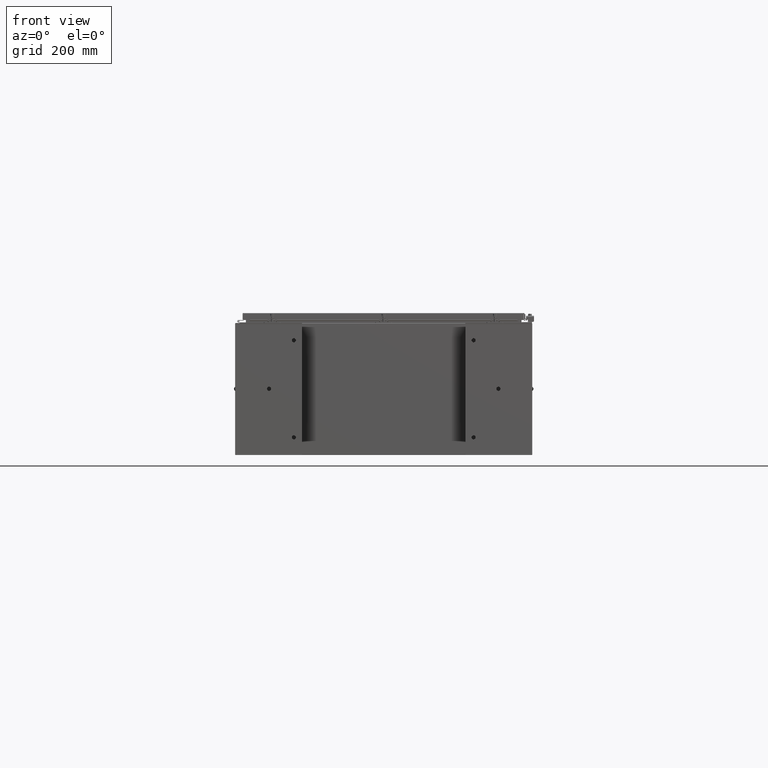
[diagram: clean part render]
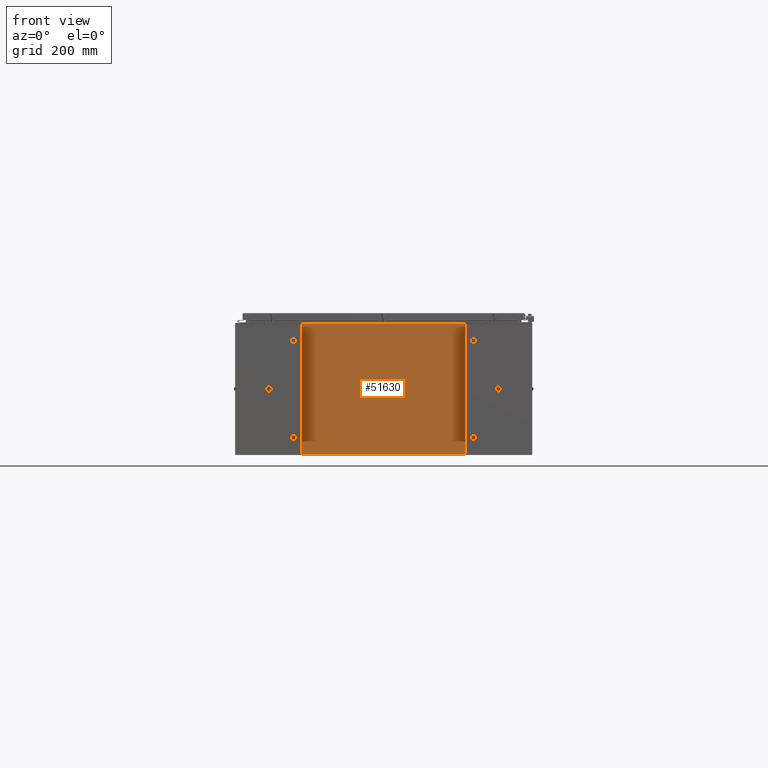
[diagram: same view with one face highlighted and labeled with its STEP entity id]
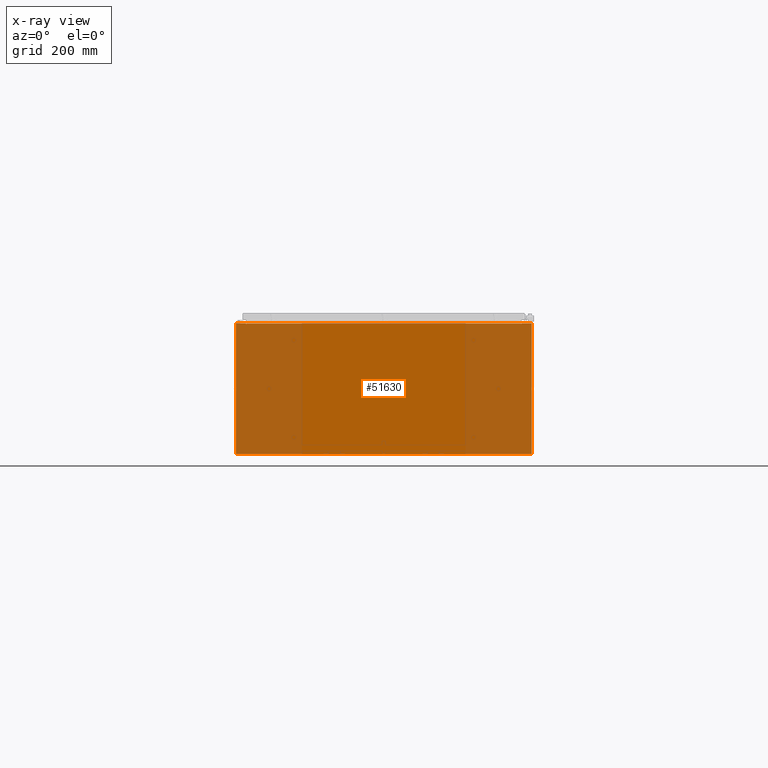
[diagram: x-ray of the same camera — body ghosted, the highlighted face saturated]
A machine part, front view. The second image highlights one B-rep face of the part: STEP entity #51630.
The next image is the same camera in x-ray: the body ghosted, the highlighted face saturated — about 44% of this face is hidden behind the body in this view.
In plain terms, the highlighted planar face has unit normal (-0, 1, -0).
Its self-contained STEP definition (entity closure, byte-faithful):
#490 = VECTOR ( 'NONE', #15220, 39.37007874015748100 ) ;
#648 = VECTOR ( 'NONE', #46348, 39.37007874015748100 ) ;
#884 = EDGE_CURVE ( 'NONE', #54843, #11940, #12975, .T. ) ;
#2053 = VERTEX_POINT ( 'NONE', #45691 ) ;
#2247 = DIRECTION ( 'NONE',  ( 0.0000000000000000000, 0.0000000000000000000, -1.000000000000000000 ) ) ;
#2486 = CARTESIAN_POINT ( 'NONE',  ( -17.92530000000000000, 0.0000000000000000000, -7.925299999999997300 ) ) ;
#2581 = ORIENTED_EDGE ( 'NONE', *, *, #22361, .F. ) ;
#5042 = DIRECTION ( 'NONE',  ( -1.000000000000000000, -0.0000000000000000000, -0.0000000000000000000 ) ) ;
#5369 = CARTESIAN_POINT ( 'NONE',  ( 17.92530000000000000, 0.0000000000000000000, 7.925300000000000000 ) ) ;
#5681 = VERTEX_POINT ( 'NONE', #5369 ) ;
#5749 = VERTEX_POINT ( 'NONE', #2486 ) ;
#6670 = CIRCLE ( 'NONE', #21813, 0.01867499999999949400 ) ;
#6705 = FACE_OUTER_BOUND ( 'NONE', #8356, .T. ) ;
#7460 = VERTEX_POINT ( 'NONE', #66155 ) ;
#7583 = DIRECTION ( 'NONE',  ( 1.000000000000000000, 0.0000000000000000000, -6.096072018129154100E-017 ) ) ;
#8314 = DIRECTION ( 'NONE',  ( 0.0000000000000000000, 0.0000000000000000000, 1.000000000000000000 ) ) ;
#8356 = EDGE_LOOP ( 'NONE', ( #12136, #45063, #59009, #34534, #2581, #60971, #21032, #44438, #13191, #35045, #33623, #66782 ) ) ;
#9908 = CARTESIAN_POINT ( 'NONE',  ( -17.92530000000000000, 0.0000000000000000000, 7.925300000000001800 ) ) ;
#10824 = VERTEX_POINT ( 'NONE', #18031 ) ;
#11940 = VERTEX_POINT ( 'NONE', #31055 ) ;
#12136 = ORIENTED_EDGE ( 'NONE', *, *, #44224, .F. ) ;
#12732 = AXIS2_PLACEMENT_3D ( 'NONE', #55117, #60380, #28842 ) ;
#12975 = LINE ( 'NONE', #13664, #648 ) ;
#13191 = ORIENTED_EDGE ( 'NONE', *, *, #63218, .T. ) ;
#13478 = LINE ( 'NONE', #26895, #53586 ) ;
#13664 = CARTESIAN_POINT ( 'NONE',  ( 16.67454999999931800, -0.0000000000000000000, -1.447541957108381700E-012 ) ) ;
#14198 = EDGE_CURVE ( 'NONE', #7460, #10824, #60217, .T. ) ;
#14766 = EDGE_CURVE ( 'NONE', #43973, #2053, #13478, .T. ) ;
#15220 = DIRECTION ( 'NONE',  ( -0.0000000000000000000, -0.0000000000000000000, 1.000000000000000000 ) ) ;
#16100 = LINE ( 'NONE', #9908, #490 ) ;
#18031 = CARTESIAN_POINT ( 'NONE',  ( -16.67455000000000000, 0.0000000000000000000, 7.874950000000001900 ) ) ;
#19088 = LINE ( 'NONE', #36248, #32839 ) ;
#20545 = LINE ( 'NONE', #36453, #46790 ) ;
#20831 = VECTOR ( 'NONE', #32915, 39.37007874015748100 ) ;
#21032 = ORIENTED_EDGE ( 'NONE', *, *, #884, .F. ) ;
#21813 = AXIS2_PLACEMENT_3D ( 'NONE', #59978, #28461, #65239 ) ;
#22271 = DIRECTION ( 'NONE',  ( 1.000000000000000000, 0.0000000000000000000, -6.096072018129154100E-017 ) ) ;
#22361 = EDGE_CURVE ( 'NONE', #44776, #2053, #28142, .T. ) ;
#23665 = PLANE ( 'NONE',  #12732 ) ;
#24743 = CARTESIAN_POINT ( 'NONE',  ( 17.92530000000000000, 0.0000000000000000000, -7.925299999999997300 ) ) ;
#25126 = DIRECTION ( 'NONE',  ( 0.0000000000000000000, 0.0000000000000000000, -1.000000000000000000 ) ) ;
#25724 = CARTESIAN_POINT ( 'NONE',  ( -16.63720000000000400, -2.356218894535426900E-015, 7.912300000000008100 ) ) ;
#26003 = DIRECTION ( 'NONE',  ( 0.0000000000000000000, 0.0000000000000000000, -1.000000000000000000 ) ) ;
#26895 = CARTESIAN_POINT ( 'NONE',  ( -16.63720000000000400, -2.356218894535426900E-015, 7.912300000000008100 ) ) ;
#26970 = CARTESIAN_POINT ( 'NONE',  ( 16.63720000000000400, 0.0000000000000000000, 7.874950000000001900 ) ) ;
#27720 = CARTESIAN_POINT ( 'NONE',  ( -16.67455000000000000, -0.0000000000000000000, 0.0000000000000000000 ) ) ;
#28142 = LINE ( 'NONE', #55469, #42121 ) ;
#28461 = DIRECTION ( 'NONE',  ( -0.0000000000000000000, 1.000000000000000000, -0.0000000000000000000 ) ) ;
#28842 = DIRECTION ( 'NONE',  ( 0.0000000000000000000, -0.0000000000000000000, -1.000000000000000000 ) ) ;
#30682 = EDGE_CURVE ( 'NONE', #11940, #44776, #6670, .T. ) ;
#31055 = CARTESIAN_POINT ( 'NONE',  ( 16.67455000000000000, 0.0000000000000000000, 7.874950000000001900 ) ) ;
#31176 = DIRECTION ( 'NONE',  ( 1.000000000000000000, 0.0000000000000000000, 0.0000000000000000000 ) ) ;
#32839 = VECTOR ( 'NONE', #5042, 39.37007874015748100 ) ;
#32914 = CARTESIAN_POINT ( 'NONE',  ( 16.67455000000000700, 0.0000000000000000000, 7.925300000000000000 ) ) ;
#32915 = DIRECTION ( 'NONE',  ( 0.0000000000000000000, 0.0000000000000000000, 1.000000000000000000 ) ) ;
#33623 = ORIENTED_EDGE ( 'NONE', *, *, #56116, .T. ) ;
#34169 = VERTEX_POINT ( 'NONE', #38723 ) ;
#34534 = ORIENTED_EDGE ( 'NONE', *, *, #14766, .T. ) ;
#35045 = ORIENTED_EDGE ( 'NONE', *, *, #36738, .T. ) ;
#35241 = VECTOR ( 'NONE', #22271, 39.37007874015748100 ) ;
#35819 = AXIS2_PLACEMENT_3D ( 'NONE', #62895, #66095, #2247 ) ;
#36248 = CARTESIAN_POINT ( 'NONE',  ( -17.92530000000000000, 0.0000000000000000000, -7.925299999999997300 ) ) ;
#36297 = LINE ( 'NONE', #27720, #20831 ) ;
#36453 = CARTESIAN_POINT ( 'NONE',  ( 17.92530000000000000, 0.0000000000000000000, 7.925300000000000000 ) ) ;
#36568 = CARTESIAN_POINT ( 'NONE',  ( -16.67455000000000000, 0.0000000000000000000, 7.925300000000001800 ) ) ;
#36738 = EDGE_CURVE ( 'NONE', #59463, #5749, #19088, .T. ) ;
#38042 = VERTEX_POINT ( 'NONE', #36568 ) ;
#38723 = CARTESIAN_POINT ( 'NONE',  ( -17.92530000000000000, 0.0000000000000000000, 7.925300000000001800 ) ) ;
#38830 = CARTESIAN_POINT ( 'NONE',  ( -17.92530000000000000, 0.0000000000000000000, 7.925300000000001800 ) ) ;
#40916 = CARTESIAN_POINT ( 'NONE',  ( -16.63720000000000400, -0.0000000000000000000, 0.0000000000000000000 ) ) ;
#42121 = VECTOR ( 'NONE', #8314, 39.37007874015748100 ) ;
#43973 = VERTEX_POINT ( 'NONE', #25724 ) ;
#44030 = LINE ( 'NONE', #40916, #56374 ) ;
#44224 = EDGE_CURVE ( 'NONE', #10824, #38042, #36297, .T. ) ;
#44438 = ORIENTED_EDGE ( 'NONE', *, *, #58321, .T. ) ;
#44776 = VERTEX_POINT ( 'NONE', #26970 ) ;
#45063 = ORIENTED_EDGE ( 'NONE', *, *, #14198, .F. ) ;
#45691 = CARTESIAN_POINT ( 'NONE',  ( 16.63720000000000400, 0.0000000000000000000, 7.912300000000001900 ) ) ;
#45965 = EDGE_CURVE ( 'NONE', #34169, #38042, #49381, .T. ) ;
#46348 = DIRECTION ( 'NONE',  ( -8.681145560800387200E-014, 0.0000000000000000000, -1.000000000000000000 ) ) ;
#46790 = VECTOR ( 'NONE', #26003, 39.37007874015748100 ) ;
#48231 = VECTOR ( 'NONE', #7583, 39.37007874015748100 ) ;
#48450 = CARTESIAN_POINT ( 'NONE',  ( -17.92530000000000000, 0.0000000000000000000, 7.925300000000001800 ) ) ;
#49381 = LINE ( 'NONE', #48450, #35241 ) ;
#51630 = ADVANCED_FACE ( 'NONE', ( #6705 ), #23665, .F. ) ;
#53586 = VECTOR ( 'NONE', #31176, 39.37007874015748100 ) ;
#53885 = EDGE_CURVE ( 'NONE', #43973, #7460, #44030, .T. ) ;
#54843 = VERTEX_POINT ( 'NONE', #32914 ) ;
#55117 = CARTESIAN_POINT ( 'NONE',  ( 0.0000000000000000000, 0.0000000000000000000, 0.0000000000000000000 ) ) ;
#55469 = CARTESIAN_POINT ( 'NONE',  ( 16.63720000000000400, 0.0000000000000000000, 0.0000000000000000000 ) ) ;
#56116 = EDGE_CURVE ( 'NONE', #5749, #34169, #16100, .T. ) ;
#56374 = VECTOR ( 'NONE', #25126, 39.37007874015748100 ) ;
#58321 = EDGE_CURVE ( 'NONE', #54843, #5681, #62163, .T. ) ;
#59009 = ORIENTED_EDGE ( 'NONE', *, *, #53885, .F. ) ;
#59463 = VERTEX_POINT ( 'NONE', #24743 ) ;
#59978 = CARTESIAN_POINT ( 'NONE',  ( 16.65587500000000200, 0.0000000000000000000, 7.874950000000001900 ) ) ;
#60217 = CIRCLE ( 'NONE', #35819, 0.01867499999999949400 ) ;
#60380 = DIRECTION ( 'NONE',  ( 0.0000000000000000000, -1.000000000000000000, 0.0000000000000000000 ) ) ;
#60971 = ORIENTED_EDGE ( 'NONE', *, *, #30682, .F. ) ;
#62163 = LINE ( 'NONE', #38830, #48231 ) ;
#62895 = CARTESIAN_POINT ( 'NONE',  ( -16.65587500000000200, 0.0000000000000000000, 7.874950000000001900 ) ) ;
#63218 = EDGE_CURVE ( 'NONE', #5681, #59463, #20545, .T. ) ;
#65239 = DIRECTION ( 'NONE',  ( 0.0000000000000000000, 0.0000000000000000000, -1.000000000000000000 ) ) ;
#66095 = DIRECTION ( 'NONE',  ( -0.0000000000000000000, 1.000000000000000000, -0.0000000000000000000 ) ) ;
#66155 = CARTESIAN_POINT ( 'NONE',  ( -16.63720000000000400, -0.0000000000000000000, 7.874950000000001900 ) ) ;
#66782 = ORIENTED_EDGE ( 'NONE', *, *, #45965, .T. ) ;